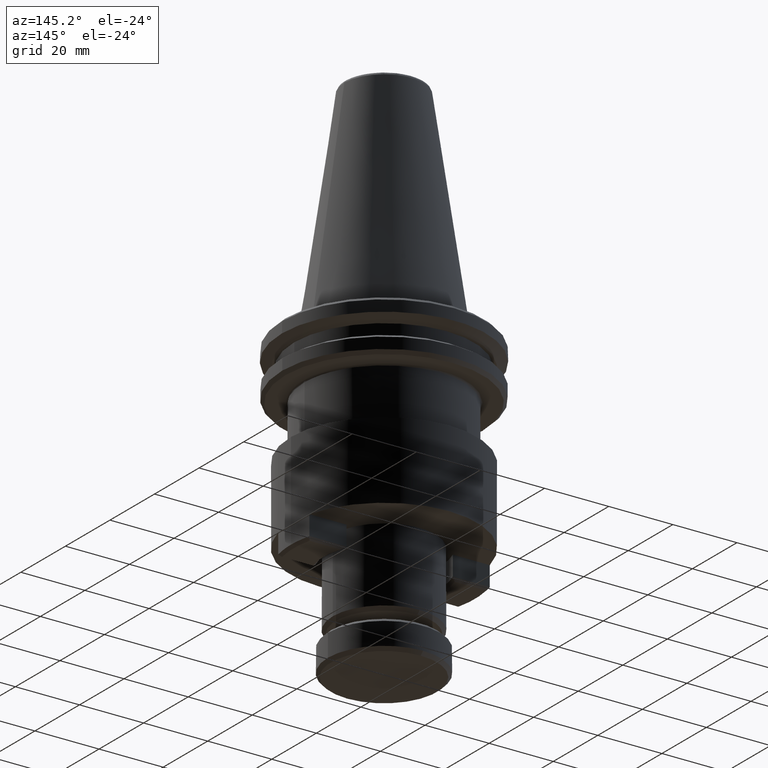
[diagram: clean part render]
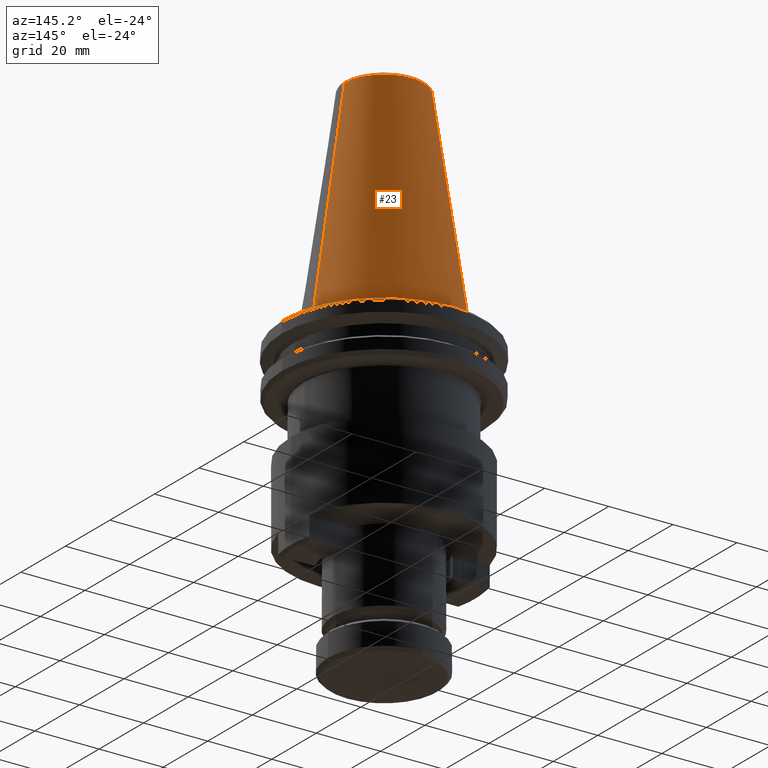
[diagram: same view with one face highlighted and labeled with its STEP entity id]
A machine part, auxiliary view. The second image highlights one B-rep face of the part: STEP entity #23.
In plain terms, the highlighted conical surface has half-angle 8.297 deg.
Its self-contained STEP definition (entity closure, byte-faithful):
#23 = ADVANCED_FACE ( 'NONE', ( #2940 ), #2870, .T. ) ;
#180 = AXIS2_PLACEMENT_3D ( 'NONE', #2108, #535, #2359 ) ;
#197 = DIRECTION ( 'NONE',  ( -1.000000000000000000, 0.0000000000000000000, 0.0000000000000000000 ) ) ;
#205 = DIRECTION ( 'NONE',  ( 0.0000000000000000000, 0.0000000000000000000, -1.000000000000000000 ) ) ;
#328 = ORIENTED_EDGE ( 'NONE', *, *, #1557, .T. ) ;
#338 = ORIENTED_EDGE ( 'NONE', *, *, #1813, .T. ) ;
#441 = AXIS2_PLACEMENT_3D ( 'NONE', #2186, #3177, #197 ) ;
#468 = ORIENTED_EDGE ( 'NONE', *, *, #598, .T. ) ;
#535 = DIRECTION ( 'NONE',  ( 0.0000000000000000000, 0.0000000000000000000, -1.000000000000000000 ) ) ;
#542 = VERTEX_POINT ( 'NONE', #654 ) ;
#548 = AXIS2_PLACEMENT_3D ( 'NONE', #2980, #205, #1566 ) ;
#598 = EDGE_CURVE ( 'NONE', #3002, #2787, #2395, .T. ) ;
#654 = CARTESIAN_POINT ( 'NONE',  ( 69.92407728265517600, 93.68607934060428000, 163.3082968297128200 ) ) ;
#1071 = CIRCLE ( 'NONE', #180, 12.37469537600000000 ) ;
#1181 = DIRECTION ( 'NONE',  ( 0.1443082272694599400, 1.767266086161729200E-017, -0.9895327864918603800 ) ) ;
#1202 = CARTESIAN_POINT ( 'NONE',  ( 60.07377265865518000, 93.68607934060428000, 95.76398860271280000 ) ) ;
#1264 = CIRCLE ( 'NONE', #441, 22.22499999999999400 ) ;
#1336 = EDGE_LOOP ( 'NONE', ( #338, #468, #328, #3314 ) ) ;
#1532 = VECTOR ( 'NONE', #2396, 1000.000000000000100 ) ;
#1557 = EDGE_CURVE ( 'NONE', #2787, #2227, #1264, .T. ) ;
#1566 = DIRECTION ( 'NONE',  ( -1.000000000000000000, 0.0000000000000000000, 0.0000000000000000000 ) ) ;
#1813 = EDGE_CURVE ( 'NONE', #542, #3002, #1071, .T. ) ;
#1835 = CARTESIAN_POINT ( 'NONE',  ( 104.5237726586551800, 93.68607934060428000, 95.76398860271280000 ) ) ;
#2054 = CARTESIAN_POINT ( 'NONE',  ( 94.67346803465517300, 93.68607934060428000, 163.3082968297128200 ) ) ;
#2108 = CARTESIAN_POINT ( 'NONE',  ( 82.29877265865518200, 93.68607934060428000, 163.3082968297127900 ) ) ;
#2186 = CARTESIAN_POINT ( 'NONE',  ( 82.29877265865518200, 93.68607934060428000, 95.76398860271280000 ) ) ;
#2227 = VERTEX_POINT ( 'NONE', #1202 ) ;
#2357 = VECTOR ( 'NONE', #1181, 1000.000000000000100 ) ;
#2359 = DIRECTION ( 'NONE',  ( -1.000000000000000000, 0.0000000000000000000, 0.0000000000000000000 ) ) ;
#2395 = LINE ( 'NONE', #1835, #2357 ) ;
#2396 = DIRECTION ( 'NONE',  ( -0.1443082272694599400, 0.0000000000000000000, -0.9895327864918603800 ) ) ;
#2634 = CARTESIAN_POINT ( 'NONE',  ( 60.07377265865518000, 93.68607934060428000, 95.76398860271280000 ) ) ;
#2787 = VERTEX_POINT ( 'NONE', #3303 ) ;
#2808 = LINE ( 'NONE', #2634, #1532 ) ;
#2870 = CONICAL_SURFACE ( 'NONE', #548, 22.22499999999999400, 0.1448138465495947800 ) ;
#2940 = FACE_OUTER_BOUND ( 'NONE', #1336, .T. ) ;
#2980 = CARTESIAN_POINT ( 'NONE',  ( 82.29877265865518200, 93.68607934060428000, 95.76398860271280000 ) ) ;
#3002 = VERTEX_POINT ( 'NONE', #2054 ) ;
#3177 = DIRECTION ( 'NONE',  ( -0.0000000000000000000, -0.0000000000000000000, 1.000000000000000000 ) ) ;
#3194 = EDGE_CURVE ( 'NONE', #542, #2227, #2808, .T. ) ;
#3303 = CARTESIAN_POINT ( 'NONE',  ( 104.5237726586551800, 93.68607934060428000, 95.76398860271280000 ) ) ;
#3314 = ORIENTED_EDGE ( 'NONE', *, *, #3194, .F. ) ;